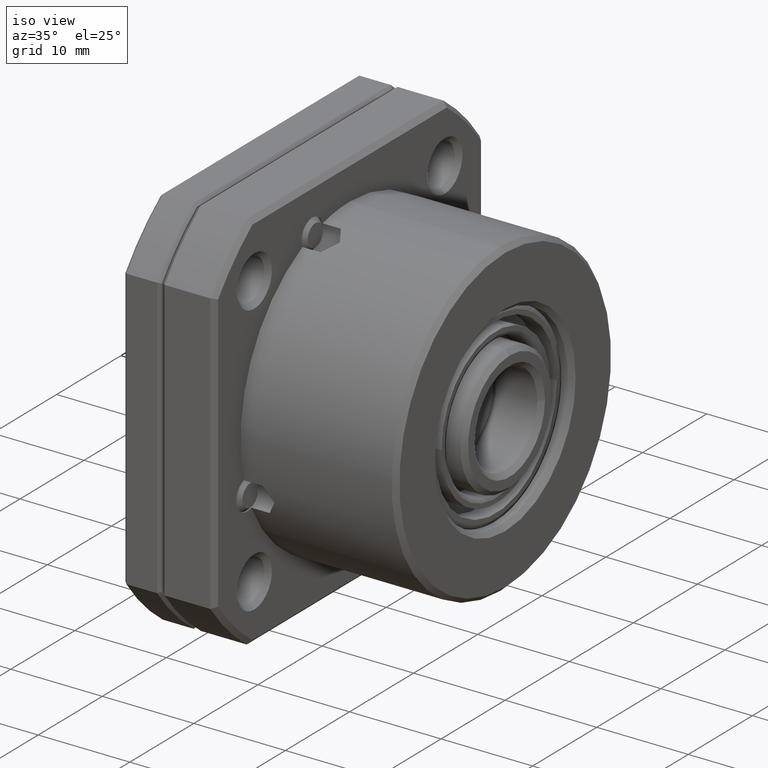
[diagram: clean part render]
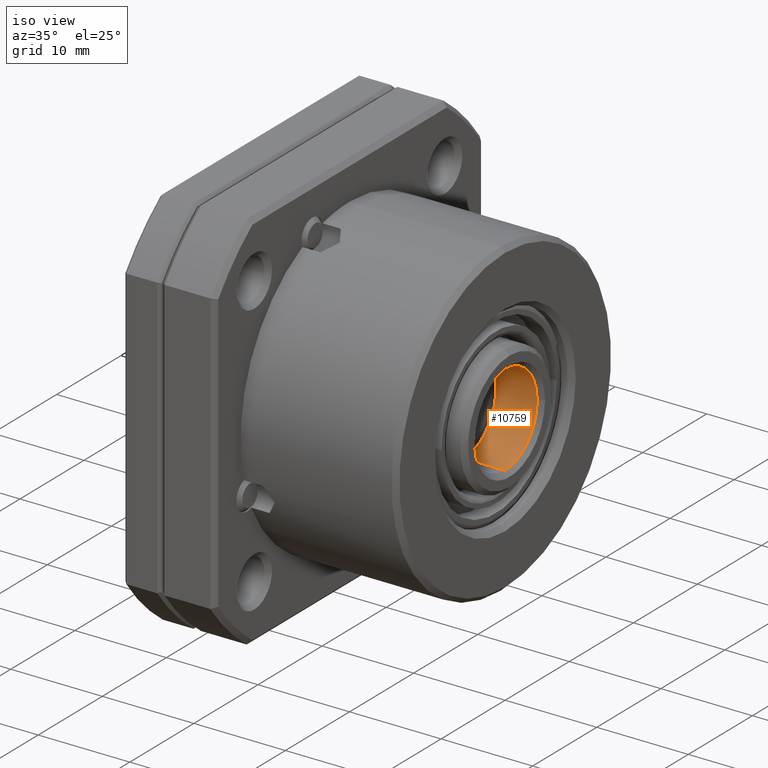
[diagram: same view with one face highlighted and labeled with its STEP entity id]
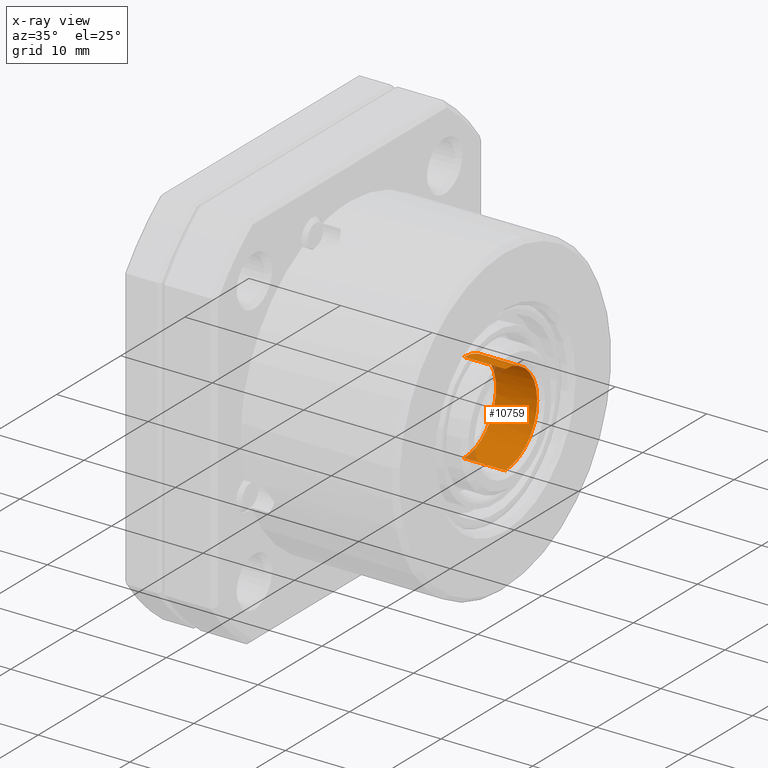
[diagram: x-ray of the same camera — body ghosted, the highlighted face saturated]
A machine part, iso view. The second image highlights one B-rep face of the part: STEP entity #10759.
The next image is the same camera in x-ray: the body ghosted, the highlighted face saturated — about 3% of this face is hidden behind the body in this view.
In plain terms, the highlighted cylindrical surface (partial cylindrical patch) has radius 5 mm, axis along (-1, 0, 0).
Its self-contained STEP definition (entity closure, byte-faithful):
#44 = CARTESIAN_POINT ( 'NONE',  ( 22.99999999996771300, 2.143499969698937000E-015, -4.999999999941945100 ) ) ;
#54 = CARTESIAN_POINT ( 'NONE',  ( 22.99999999996771300, 1.531176570128815500E-015, 4.999999999941939800 ) ) ;
#129 = VERTEX_POINT ( 'NONE', #9342 ) ;
#213 = VECTOR ( 'NONE', #11151, 1000.000000000000000 ) ;
#655 = VERTEX_POINT ( 'NONE', #2102 ) ;
#671 = CIRCLE ( 'NONE', #5500, 4.999999999941942400 ) ;
#1107 = CYLINDRICAL_SURFACE ( 'NONE', #9260, 5.000000000000000900 ) ;
#1308 = ORIENTED_EDGE ( 'NONE', *, *, #17051, .F. ) ;
#1586 = FACE_OUTER_BOUND ( 'NONE', #15461, .T. ) ;
#1841 = ORIENTED_EDGE ( 'NONE', *, *, #15722, .T. ) ;
#2102 = CARTESIAN_POINT ( 'NONE',  ( 22.99999999996771300, 4.999999999941944200, -2.655948386969090300E-015 ) ) ;
#2519 = CARTESIAN_POINT ( 'NONE',  ( 18.49999999999999600, 1.531176570128815500E-015, -2.666257297030887800E-015 ) ) ;
#2549 = ORIENTED_EDGE ( 'NONE', *, *, #10950, .F. ) ;
#2788 = CARTESIAN_POINT ( 'NONE',  ( 18.49999999999999600, 2.143499969702492400E-015, -5.000000000000006200 ) ) ;
#3231 = LINE ( 'NONE', #4943, #10651 ) ;
#3452 = CARTESIAN_POINT ( 'NONE',  ( 22.99999999996771300, 1.531176570128815500E-015, -2.666257297030887800E-015 ) ) ;
#3565 = AXIS2_PLACEMENT_3D ( 'NONE', #2519, #12898, #4041 ) ;
#4041 = DIRECTION ( 'NONE',  ( 0.0000000000000000000, 0.6831001153921045800, -0.7303247444468066200 ) ) ;
#4252 = LINE ( 'NONE', #16964, #213 ) ;
#4543 = VERTEX_POINT ( 'NONE', #54 ) ;
#4778 = EDGE_CURVE ( 'NONE', #655, #4543, #13433, .T. ) ;
#4873 = VERTEX_POINT ( 'NONE', #44 ) ;
#4943 = CARTESIAN_POINT ( 'NONE',  ( 2.938478467263673500, 2.143499969702492000E-015, -5.000000000000003600 ) ) ;
#4991 = DIRECTION ( 'NONE',  ( 0.0000000000000000000, 0.6831001153920813800, -0.7303247444468283800 ) ) ;
#5170 = DIRECTION ( 'NONE',  ( 1.000000000000000000, 0.0000000000000000000, 0.0000000000000000000 ) ) ;
#5500 = AXIS2_PLACEMENT_3D ( 'NONE', #3452, #13788, #4991 ) ;
#7314 = VERTEX_POINT ( 'NONE', #16546 ) ;
#7634 = VERTEX_POINT ( 'NONE', #2788 ) ;
#8085 = ORIENTED_EDGE ( 'NONE', *, *, #12925, .F. ) ;
#9260 = AXIS2_PLACEMENT_3D ( 'NONE', #15739, #17218, #14257 ) ;
#9342 = CARTESIAN_POINT ( 'NONE',  ( 18.49999999999999600, 3.415500576960526200, -3.651623722234037700 ) ) ;
#10153 = CIRCLE ( 'NONE', #3565, 5.000000000000002700 ) ;
#10636 = AXIS2_PLACEMENT_3D ( 'NONE', #13943, #5170, #15408 ) ;
#10651 = VECTOR ( 'NONE', #12288, 1000.000000000000000 ) ;
#10759 = ADVANCED_FACE ( 'NONE', ( #1586 ), #1107, .F. ) ;
#10950 = EDGE_CURVE ( 'NONE', #4873, #7634, #3231, .T. ) ;
#11151 = DIRECTION ( 'NONE',  ( -1.000000000000000000, 0.0000000000000000000, 0.0000000000000000000 ) ) ;
#11928 = DIRECTION ( 'NONE',  ( 0.0000000000000000000, 0.6831001153920813800, -0.7303247444468283800 ) ) ;
#12201 = DIRECTION ( 'NONE',  ( 1.000000000000000000, 0.0000000000000000000, 0.0000000000000000000 ) ) ;
#12288 = DIRECTION ( 'NONE',  ( -1.000000000000000000, 0.0000000000000000000, 0.0000000000000000000 ) ) ;
#12898 = DIRECTION ( 'NONE',  ( 1.000000000000000000, 0.0000000000000000000, 0.0000000000000000000 ) ) ;
#12925 = EDGE_CURVE ( 'NONE', #129, #7314, #10153, .T. ) ;
#12992 = CARTESIAN_POINT ( 'NONE',  ( 22.99999999996771300, 1.531176570128815500E-015, -2.666257297030887800E-015 ) ) ;
#13433 = CIRCLE ( 'NONE', #15380, 4.999999999941942400 ) ;
#13788 = DIRECTION ( 'NONE',  ( 1.000000000000000000, 0.0000000000000000000, 0.0000000000000000000 ) ) ;
#13943 = CARTESIAN_POINT ( 'NONE',  ( 18.49999999999999600, 1.531176570128815500E-015, -2.666257297030887800E-015 ) ) ;
#14257 = DIRECTION ( 'NONE',  ( 0.0000000000000000000, 0.0000000000000000000, 1.000000000000000000 ) ) ;
#15380 = AXIS2_PLACEMENT_3D ( 'NONE', #12992, #12201, #11928 ) ;
#15408 = DIRECTION ( 'NONE',  ( 0.0000000000000000000, 0.6831001153921045800, -0.7303247444468066200 ) ) ;
#15461 = EDGE_LOOP ( 'NONE', ( #2549, #18292, #18597, #1841, #8085, #1308 ) ) ;
#15722 = EDGE_CURVE ( 'NONE', #4543, #7314, #4252, .T. ) ;
#15739 = CARTESIAN_POINT ( 'NONE',  ( 2.938478467263673500, 1.531176570128815500E-015, -2.666257297030887800E-015 ) ) ;
#16546 = CARTESIAN_POINT ( 'NONE',  ( 18.49999999999999600, 1.531176570128815500E-015, 5.000000000000000900 ) ) ;
#16585 = EDGE_CURVE ( 'NONE', #4873, #655, #671, .T. ) ;
#16669 = CIRCLE ( 'NONE', #10636, 5.000000000000002700 ) ;
#16964 = CARTESIAN_POINT ( 'NONE',  ( 2.938478467263673500, 1.531176570128815500E-015, 4.999999999999998200 ) ) ;
#17051 = EDGE_CURVE ( 'NONE', #7634, #129, #16669, .T. ) ;
#17218 = DIRECTION ( 'NONE',  ( -1.000000000000000000, 0.0000000000000000000, 0.0000000000000000000 ) ) ;
#18292 = ORIENTED_EDGE ( 'NONE', *, *, #16585, .T. ) ;
#18597 = ORIENTED_EDGE ( 'NONE', *, *, #4778, .T. ) ;